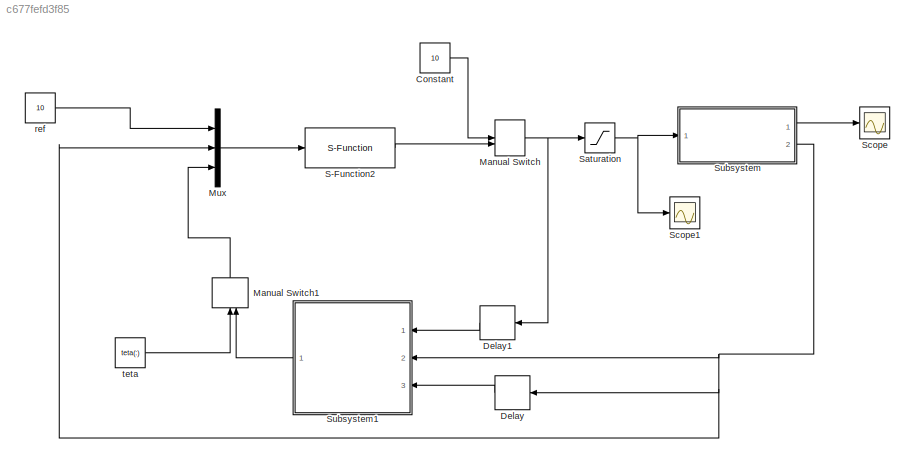
MODEL slx_c677fefd3f85
KIND model
CONFIG AbsTol = auto
CONFIG EnableMultiTasking = off
CONFIG FixedStep = auto
CONFIG MaxStep = auto
CONFIG MinStep = auto
CONFIG RelTol = 1e-3
CONFIG SampleTimeConstraint = Unconstrained
CONFIG SolverName = VariableStepAuto
CONFIG StartTime = 0.0
CONFIG StopTime = 0.5
BLOCK [Constant] Constant
  Value = 10
BLOCK [Delay] Delay
  DelayLength = 1
  InitialCondition = 0
  InputPortMap = u0
  NameLocation = top
  Ports = [1, 1]
BLOCK [Delay] Delay1
  DelayLength = 1
  InitialCondition = 0
  InputPortMap = u0
  NameLocation = top
  Ports = [1, 1]
BLOCK [ManualSwitch] Manual Switch
  CurrentSetting = 0
BLOCK [ManualSwitch] Manual Switch1
  CurrentSetting = 0
  NameLocation = right
BLOCK [Mux] Mux
  DisplayOption = bar
  Inputs = 3
  Ports = [3, 1]
BLOCK [S-Function] S-Function2
  EnableBusSupport = off
  FunctionName = szamol
  Ports = [1, 1]
  SFcnIsStateOwnerBlock = off
  SFunctionDeploymentMode = off
BLOCK [Saturate] Saturation
  LowerLimit = -50
  UpperLimit = 50
BLOCK [Scope] Scope
  Floating = off
  NumInputPorts = 1
  Ports = [1]
  ScopeSpecificationString = Simulink.scopes.TimeScopeBlockCfg('CurrentConfiguration', extmgr.ConfigurationSet(extmgr.Configuration('Core','General UI',true),extmgr.Configuration('Core','Source UI',true),extmgr.Configuration('Sources','WiredSimulink',true),extmgr.Configuration('Visuals','Time Domain',true,'SerializedDisplays',{struct('MinYLimReal','-88.69769','MaxYLimReal','73.65389','YLabelReal','','MinYLimMag','0.00000','Ma...<+1414ch>
BLOCK [Scope] Scope1
  Floating = off
  NumInputPorts = 1
  Ports = [1]
  ScopeSpecificationString = Simulink.scopes.TimeScopeBlockCfg('CurrentConfiguration', extmgr.ConfigurationSet(extmgr.Configuration('Core','General UI',true),extmgr.Configuration('Core','Source UI',true),extmgr.Configuration('Sources','WiredSimulink',true,'DataLoggingVariableName','ScopeData1'),extmgr.Configuration('Visuals','Time Domain',true,'SerializedDisplays',{struct('MinYLimReal','-1.96095','MaxYLimReal','10.07454','YLa...<+1450ch>
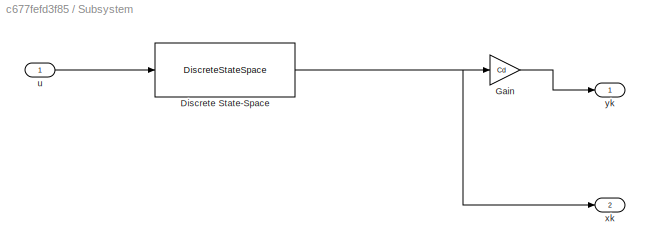
BLOCK [SubSystem] Subsystem
  Ports = [1, 2]
  RequestExecContextInheritance = off
BLOCK [DiscreteStateSpace] Subsystem/Discrete State-Space
  A = Ad
  B = Bd
  C = eye(3)
  D = zeros(3,1)
  SampleTime = -1
BLOCK [Gain] Subsystem/Gain
  Gain = Cd
  Multiplication = Matrix(K*u)
BLOCK [Inport] Subsystem/u
BLOCK [Outport] Subsystem/xk
  Port = 2
BLOCK [Outport] Subsystem/yk
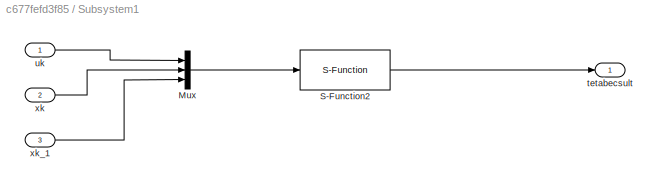
BLOCK [SubSystem] Subsystem1
  NameLocation = top
  Ports = [3, 1]
  RequestExecContextInheritance = off
BLOCK [Mux] Subsystem1/Mux
  DisplayOption = bar
  Inputs = 3
  Ports = [3, 1]
BLOCK [S-Function] Subsystem1/S-Function2
  EnableBusSupport = off
  FunctionName = becslo
  Ports = [1, 1]
  SFcnIsStateOwnerBlock = off
  SFunctionDeploymentMode = off
BLOCK [Outport] Subsystem1/tetabecsult
BLOCK [Inport] Subsystem1/uk
BLOCK [Inport] Subsystem1/xk
  Port = 2
BLOCK [Inport] Subsystem1/xk_1
  Port = 3
BLOCK [Constant] ref
  Value = 10
BLOCK [Constant] teta
  Value = teta(:)
LINE Constant:1 -> Manual Switch:1
LINE Delay1:1 -> Subsystem1:1
LINE Delay:1 -> Subsystem1:3
LINE Manual Switch1:1 -> Mux:3
NET Manual Switch:1 -> Delay1:1, Saturation:1
LINE Mux:1 -> S-Function2:1
LINE S-Function2:1 -> Manual Switch:2
NET Saturation:1 -> Scope1:1, Subsystem:1
NET Subsystem/Discrete State-Space:1 -> Subsystem/Gain:1, Subsystem/xk:1
LINE Subsystem/Gain:1 -> Subsystem/yk:1
LINE Subsystem/u:1 -> Subsystem/Discrete State-Space:1
LINE Subsystem1/Mux:1 -> Subsystem1/S-Function2:1
LINE Subsystem1/S-Function2:1 -> Subsystem1/tetabecsult:1
LINE Subsystem1/uk:1 -> Subsystem1/Mux:1
LINE Subsystem1/xk:1 -> Subsystem1/Mux:2
LINE Subsystem1/xk_1:1 -> Subsystem1/Mux:3
LINE Subsystem1:1 -> Manual Switch1:2
LINE Subsystem:1 -> Scope:1
NET Subsystem:2 -> Delay:1, Mux:2, Subsystem1:2
LINE ref:1 -> Mux:1
LINE teta:1 -> Manual Switch1:1
note: NET lines group one-source signal fan-out (src -> all destinations, sorted); 1:1 wires keep LINE
